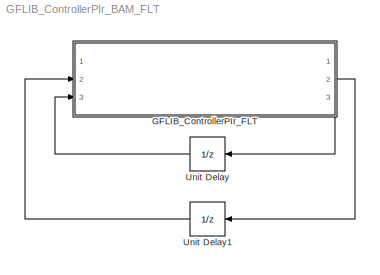
MODEL GFLIB_ControllerPIr_BAM_FLT
KIND model
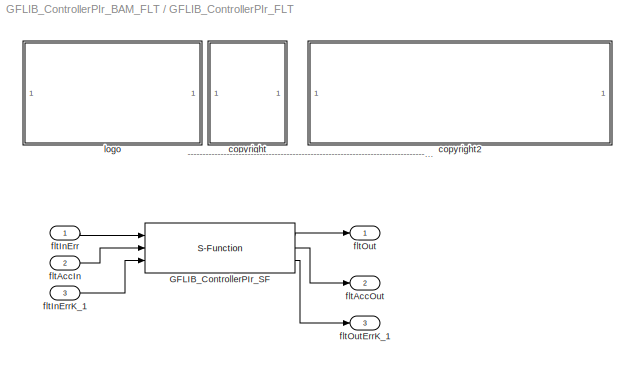
BLOCK [SubSystem] GFLIB_ControllerPIr_FLT
  FunctionWithSeparateData = off
  MaskCallbackString = |
  MaskDescription = Bit accurate model of reccurent form PI controller. All parameters as well as input and output are single precison floating point numbers.
  MaskDisplay = color('black');\nport_label('input',1,'fltInErr');\nport_label('input',2,'fltAccIn');\nport_label('input',3,'fltInErrK_1');\nport_label('output',1,'fltOut');\nport_label('output',2,'fltAccOut');\nport_label('output',3,'fltOutErrK_1');\ncolor('black');\ndisp('GFLIB_ControllerPIr_FLT');\ncolor('blue');\ntext(tX,tY, 'BAM', 'horizontalAlignment', 'center');
  MaskEnableString = on,on
  MaskHideContents = off
  MaskIconFrame = on
  MaskIconOpaque = on
  MaskIconRotate = none
  MaskIconUnits = pixels
  MaskInitialization = pos = get_param(gcb, 'Position');width = pos(3) - pos(1); height = pos(4) - pos(2);tX=width/2;tY=height*0.9;
  MaskPortRotate = default
  MaskPromptString = fltCC1|fltCC2
  MaskStyleString = edit,edit
  MaskTabNameString = ,
  MaskToolTipString = on,on
  MaskTunableValueString = on,on
  MaskType = GFLIB_ControllerPIr_FLT
  MaskValueString = fltCC1|fltCC2
  MaskVarAliasString = ,
  MaskVariables = fltCC1=@1;fltCC2=@2;
  MaskVisibilityString = on,on
  MinAlgLoopOccurrences = off
  Opaque = off
  Ports = [3, 3]
  PropExecContextOutsideSubsystem = off
  RTWSystemCode = Auto
  RequestExecContextInheritance = off
BLOCK [S-Function] GFLIB_ControllerPIr_FLT/GFLIB_ControllerPIr_SF
  EnableBusSupport = off
  FunctionName = GFLIB_ControllerPIr_SF_FLT
  Parameters = fltCC1,fltCC2
  Ports = [3, 3]
BLOCK [SubSystem] GFLIB_ControllerPIr_FLT/<copyright redacted>
  FunctionWithSeparateData = off
  MaskDisplay = text(10,90,'FILE:');text(10,75,'DESRIPTION:')text(10,60,'<copyright redacted>
  MaskHideContents = off
  MaskIconFrame = off
  MaskIconOpaque = on
  MaskIconRotate = none
  MaskIconUnits = pixels
  MaskPortRotate = default
  MinAlgLoopOccurrences = off
  Opaque = off
  Ports = []
  PropExecContextOutsideSubsystem = off
  RTWSystemCode = Auto
  RequestExecContextInheritance = off
BLOCK [SubSystem] GFLIB_ControllerPIr_FLT/copyright2
  FunctionWithSeparateData = off
  MaskDisplay = text(10,90,'GFLIB_ControllerPIr_BAM_FLT.mdl');text(10,75,'Recurrent form of a standard PI controller without implemented anti-windup.');text(10,60,'Freescale')text(10,45,'0.1');text(10,30,'20-Jan-2012');
  MaskHideContents = off
  MaskIconFrame = off
  MaskIconOpaque = on
  MaskIconRotate = none
  MaskIconUnits = pixels
  MaskPortRotate = default
  MinAlgLoopOccurrences = off
  Opaque = off
  Ports = []
  PropExecContextOutsideSubsystem = off
  RTWSystemCode = Auto
  RequestExecContextInheritance = off
BLOCK [Inport] GFLIB_ControllerPIr_FLT/fltAccIn
  IconDisplay = Port number
  OutDataType = fixdt(1, 16)
  OutScaling = 2^0
  Port = 2
BLOCK [Outport] GFLIB_ControllerPIr_FLT/fltAccOut
  IconDisplay = Port number
  OutDataType = fixdt(1, 16)
  OutScaling = 2^0
  Port = 2
BLOCK [Inport] GFLIB_ControllerPIr_FLT/fltInErr
  IconDisplay = Port number
  OutDataType = fixdt(1, 16)
  OutScaling = 2^0
BLOCK [Inport] GFLIB_ControllerPIr_FLT/fltInErrK_1
  IconDisplay = Port number
  OutDataType = fixdt(1, 16)
  OutScaling = 2^0
  Port = 3
BLOCK [Outport] GFLIB_ControllerPIr_FLT/fltOut
  IconDisplay = Port number
  OutDataType = fixdt(1, 16)
  OutScaling = 2^0
BLOCK [Outport] GFLIB_ControllerPIr_FLT/fltOutErrK_1
  IconDisplay = Port number
  OutDataType = fixdt(1, 16)
  OutScaling = 2^0
  Port = 3
BLOCK [SubSystem] GFLIB_ControllerPIr_FLT/logo
  FunctionWithSeparateData = off
  MaskDisplay = image(imread('logo.jpg'))
  MaskHideContents = off
  MaskIconFrame = off
  MaskIconOpaque = on
  MaskIconRotate = none
  MaskIconUnits = autoscale
  MaskPortRotate = default
  MinAlgLoopOccurrences = off
  Opaque = off
  Ports = []
  PropExecContextOutsideSubsystem = off
  RTWSystemCode = Auto
  RequestExecContextInheritance = off
BLOCK [UnitDelay] Unit Delay
  SampleTime = -1
BLOCK [UnitDelay] Unit Delay1
  SampleTime = -1
ANNOTATION GFLIB_ControllerPIr_FLT: ---------------------------------------------------------------------------------------------------------------------------------------------------------------------------------------------------
LINE GFLIB_ControllerPIr_FLT/GFLIB_ControllerPIr_SF:1 -> GFLIB_ControllerPIr_FLT/fltOut:1
LINE GFLIB_ControllerPIr_FLT/GFLIB_ControllerPIr_SF:2 -> GFLIB_ControllerPIr_FLT/fltAccOut:1
LINE GFLIB_ControllerPIr_FLT/GFLIB_ControllerPIr_SF:3 -> GFLIB_ControllerPIr_FLT/fltOutErrK_1:1
LINE GFLIB_ControllerPIr_FLT/fltAccIn:1 -> GFLIB_ControllerPIr_FLT/GFLIB_ControllerPIr_SF:2
LINE GFLIB_ControllerPIr_FLT/fltInErr:1 -> GFLIB_ControllerPIr_FLT/GFLIB_ControllerPIr_SF:1
LINE GFLIB_ControllerPIr_FLT/fltInErrK_1:1 -> GFLIB_ControllerPIr_FLT/GFLIB_ControllerPIr_SF:3
LINE GFLIB_ControllerPIr_FLT:2 -> Unit Delay1:1
LINE GFLIB_ControllerPIr_FLT:3 -> Unit Delay:1
LINE Unit Delay1:1 -> GFLIB_ControllerPIr_FLT:2
LINE Unit Delay:1 -> GFLIB_ControllerPIr_FLT:3
